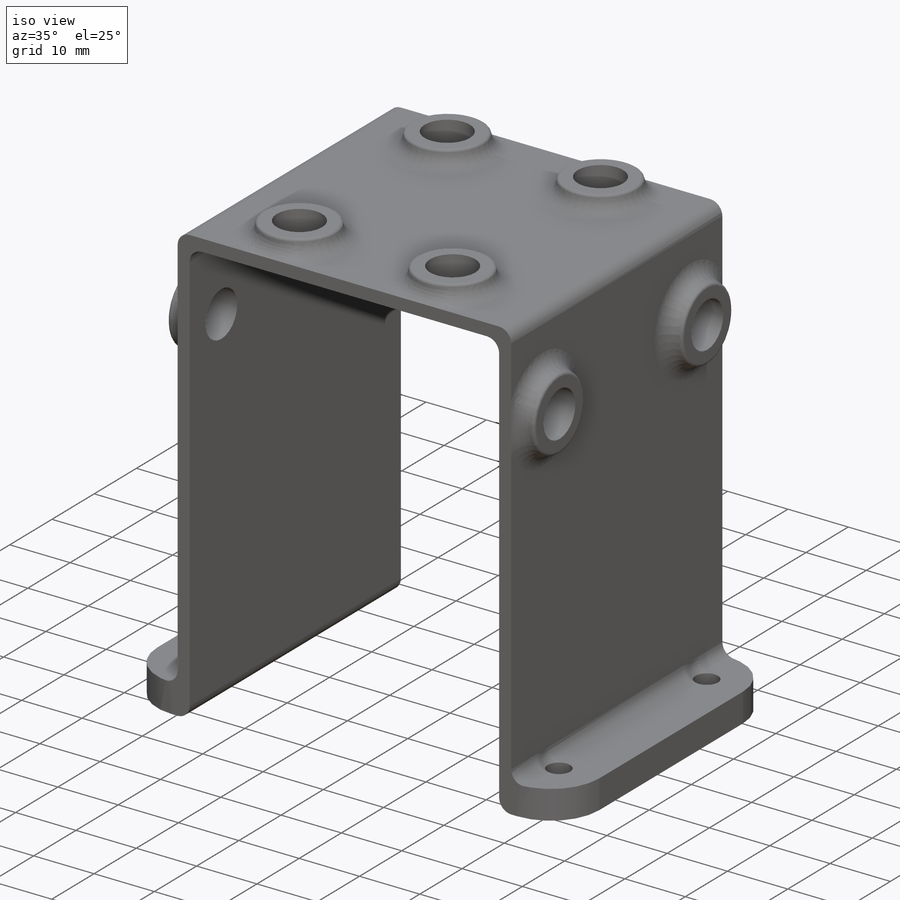
[diagram: iso view]
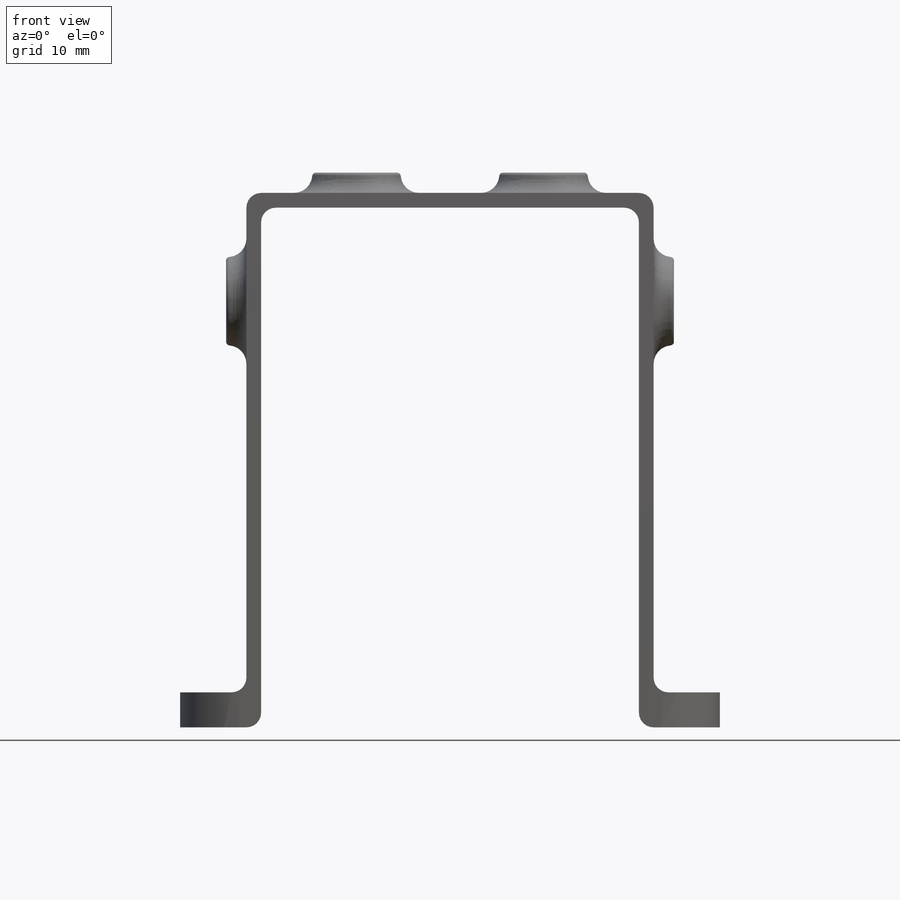
[diagram: front view]
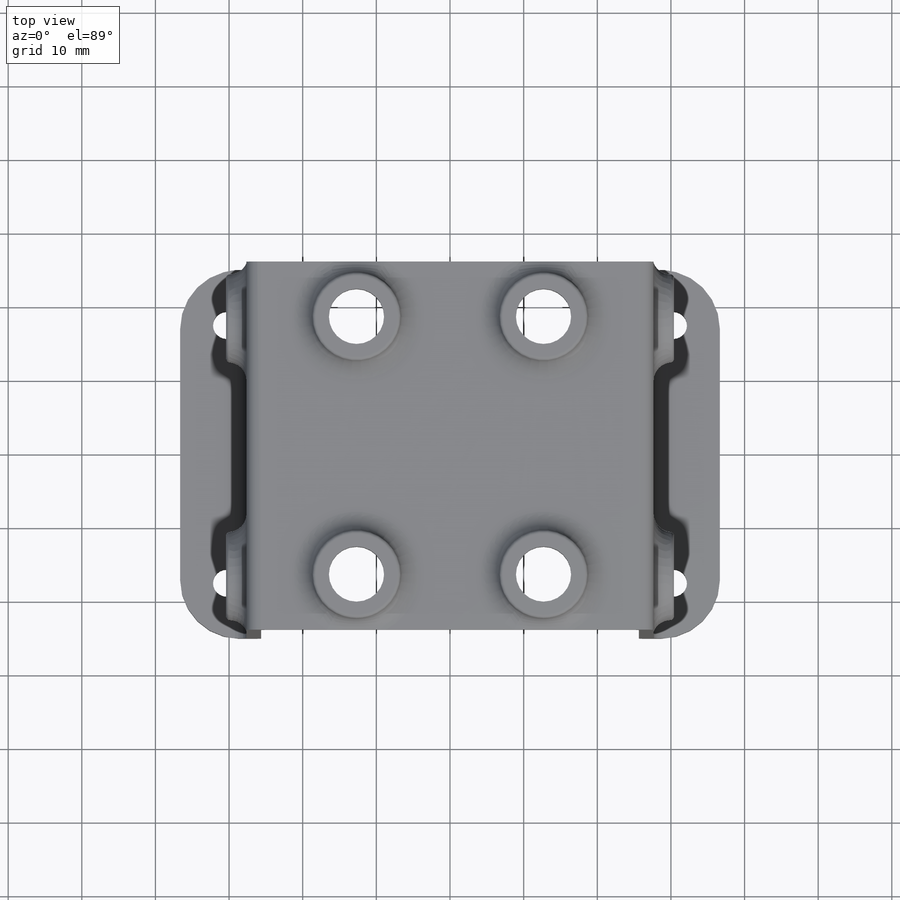
[diagram: top view]
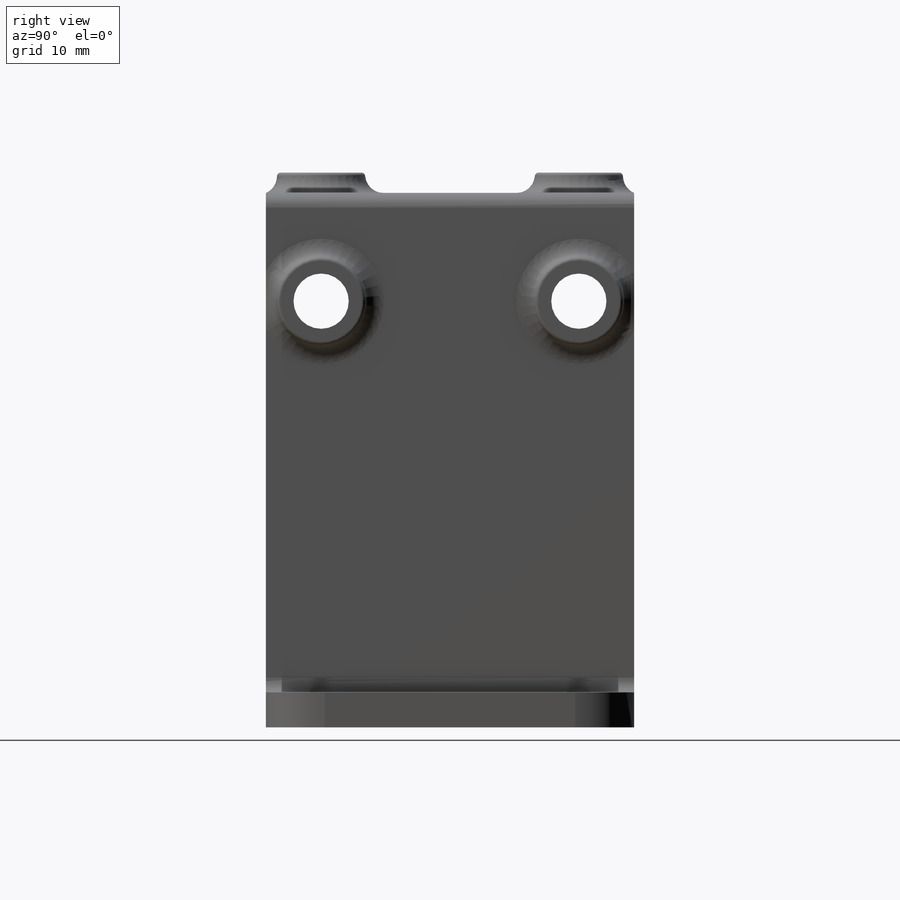
[diagram: right view]
SOLIDWORKS PART (.sldprt)
format: sldprt  version: not decoded by parser v0  size: 1,270,272 bytes
history: native  units: mm
features: sketch x8, extrude x4, fillet x4, cut_extrude x3, material x1, mirror x1 (+13 scaffold rows collapsed)
feature tree (34):
  scaffold x13  (default folders/planes/origin — collapsed)
  material  "Material <not specified>"
  sketch  "Sketch1"  dims[c1.D1=70.58mm c1.D2=~41.301738mm c1.D3=4.76mm c1.D4=2.0mm c1.D5=2.0mm c1.D6=~41.301738mm c2.D2=50.8mm c2.D4=2.0mm c2.D5=2.0mm c2.D6=9.0mm]
  extrude  "Boss-Extrude1"  Depth=50mm
  sketch  "Sketch2"  dims[D1=6.53mm D2=25.4mm D3=35.0mm]
  cut_extrude  "Cut-Extrude1"  [1 undecoded]
  sketch  "Sketch3"  dims[D1=6.53mm D2=35.0mm D3=14.7mm]
  cut_extrude  "Cut-Extrude2"  [1 undecoded]
  sketch  "Sketch4"  dims[c1.D3=3.3mm c1.D1=6.0mm c1.D2=35.0mm c1.D4=30.65mm c2.D1=30.65mm]
  cut_extrude  "Cut-Extrude3"  [1 undecoded]
  mirror  "Mirror1"
  fillet  "Fillet2"  Radius=8mm
  fillet  "Fillet3"  Radius=2mm
  sketch  "Sketch5"  dims[D1=12.0mm]
  extrude  "Boss-Extrude2"  Depth=2.76mm
  sketch  "Sketch6"  dims[D1=12.0mm D2=~12.675615mm]
  extrude  "Boss-Extrude3"  Depth=2.76mm
  sketch  "Sketch7"  dims[D1=12.0mm]
  extrude  "Boss-Extrude4"  Depth=2.76mm
  fillet  "Fillet4"  Radius=2.5mm
  fillet  "Fillet5"  Radius=0.5mm
  sketch  "Sketch8"  dims[D1=5.6mm]
decode coverage: 16 of 20 modeling features carry decoded parameters
note: ~ marks probable driven/reference dimensions
note: 3 parameter values undecoded
summary: no parameter record found for 3 features
note: suppression state not decoded; provenance and decode notes live in map.json
